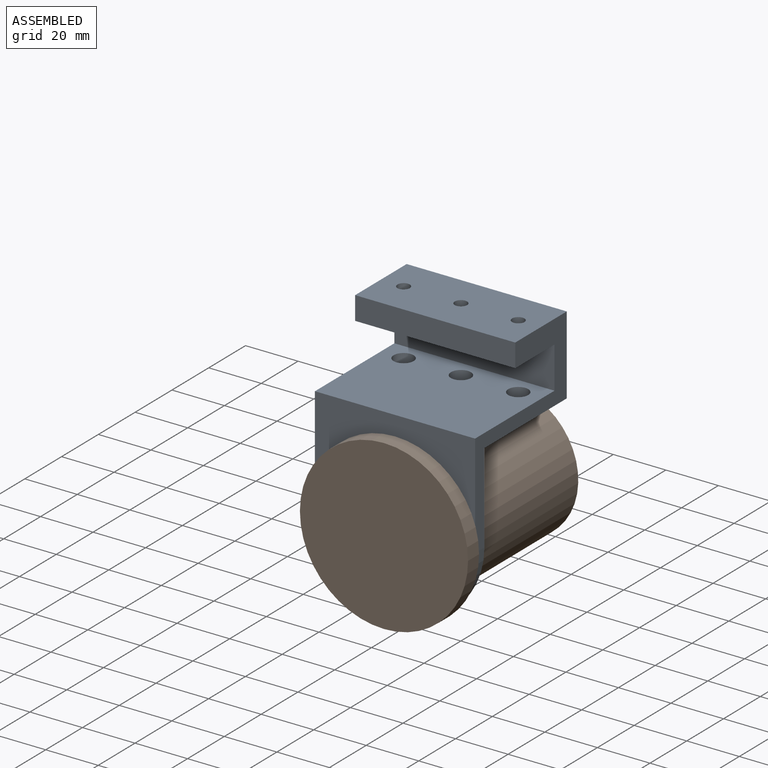
[diagram: assembled view]
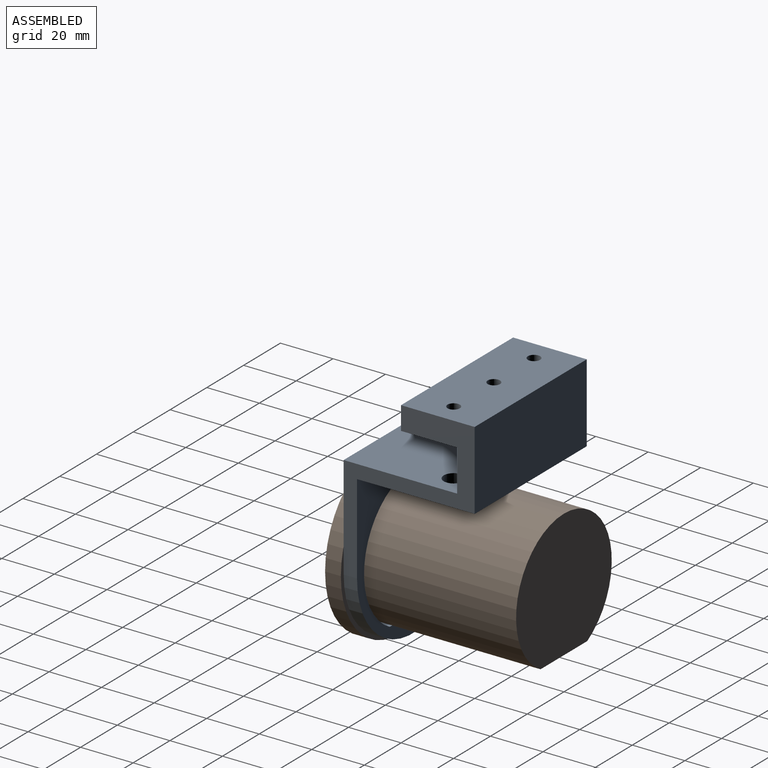
[diagram: assembled view, second angle]
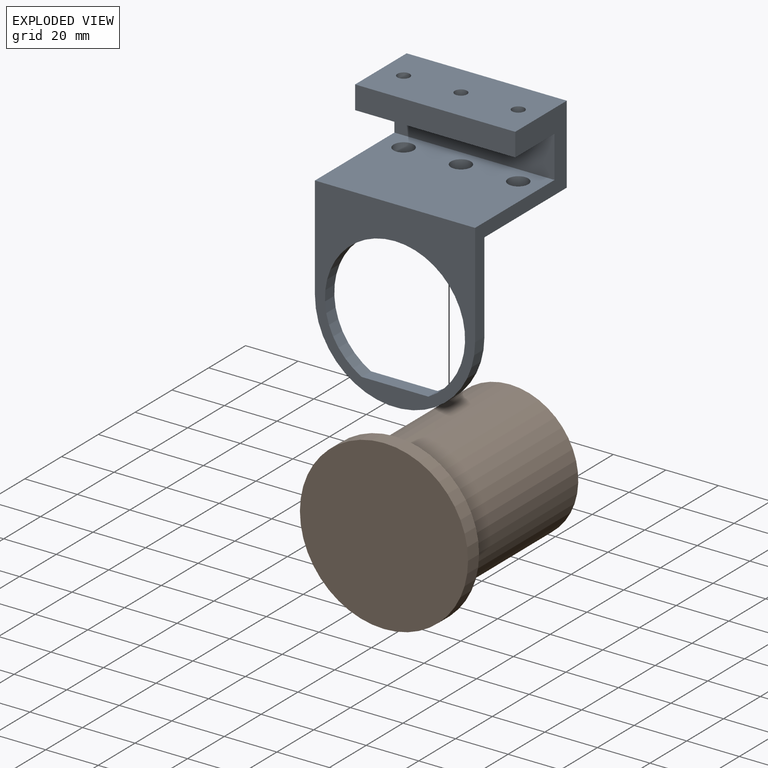
[diagram: exploded view]
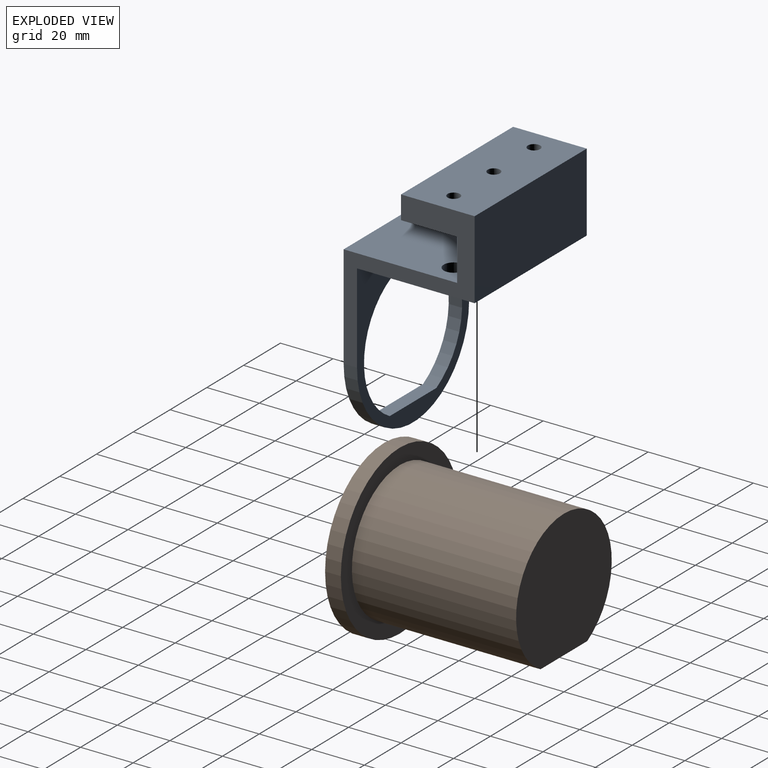
[diagram: exploded view, second angle]
ASSEMBLY  parts=2 mates=2
PART A: 20 faces, bbox 61x49.9x94.6 mm
  f0: plane 69.85x60.96mm, normal (0,-1,0), area 1679.9mm2, adj f8,f9,f10,f11,f12,f13
  f1: plane 64.65x60.96mm, normal (0,1,0), area 1363.1mm2, adj f2,f9,f10,f11,f12,f13
  f2: plane 60.96x44.78mm, normal (0,0,-1), area 2593.2mm2, adj f1,f3,f9,f10,f17,f18,f19
  f3: plane 60.96x29.91mm, normal (0,1,0), area 1823.6mm2, adj f2,f4,f9,f10
  f4: plane 60.96x28.04mm, normal (0,0,1), area 1657.1mm2, adj f3,f5,f9,f10,f14,f15,f16
  f5: plane 60.96x8.84mm, normal (0,-1,0), area 539mm2, adj f4,f6,f9,f10
  f6: plane 60.96x21.35mm, normal (0,0,-1), area 1249.7mm2, adj f5,f7,f9,f10,f14,f15,f16
  f7: plane 60.96x15.88mm, normal (0,-1,0), area 967.7mm2, adj f6,f8,f9,f10
  f8: plane 60.96x43.18mm, normal (0,0,1), area 2495.4mm2, adj f0,f7,f9,f10,f17,f18,f19
  f9: plane 64.09x49.86mm, normal (1,0,0), area 786.7mm2, adj f0,f1,f2,f3,f4,f5,f6,f7
  f10: plane 64.09x49.86mm, normal (-1,0,0), area 786.7mm2, adj f0,f1,f2,f3,f4,f5,f6,f7
  f11: plane 25.4x5.08mm, normal (0,0,1), area 129mm2, adj f0,f1,f12
  f12: cylinder r=26.67mm len=53.34mm, axis (0,-1,0), area 716.8mm2, adj f0,f1,f11
  f13: cylinder r=30.48mm len=60.96mm, axis (0,-1,0), area 486.4mm2, adj f0,f1,f9,f10
  f14: cylinder r=2.35mm len=8.84mm, axis (0,0,1), area 130.5mm2, adj f4,f6
  f15: cylinder r=2.35mm len=8.84mm, axis (0,0,1), area 130.5mm2, adj f4,f6
  f16: cylinder r=2.35mm len=8.84mm, axis (0,0,1), area 130.5mm2, adj f4,f6
  f17: cylinder r=3.81mm len=7.62mm, axis (0,0,-1), area 124.4mm2, adj f2,f8
  f18: cylinder r=3.81mm len=7.62mm, axis (0,0,-1), area 124.4mm2, adj f2,f8
  f19: cylinder r=3.81mm len=7.62mm, axis (0,0,-1), area 124.4mm2, adj f2,f8
PART B: 6 faces, bbox 64x68.5x64 mm
  f0: plane 62.5x25.4mm, normal (0,0,-1), area 1587.5mm2, adj f1,f2,f3
  f1: cylinder r=26mm len=62.5mm, axis (0,1,0), area 8551.6mm2, adj f0,f2,f3
  f2: plane 52x48.69mm, normal (0,1,0), area 2066.9mm2, adj f0,f1
  f3: plane 64x64mm, normal (0,1,0), area 1150.1mm2, adj f0,f1,f4
  f4: cylinder r=32mm len=64mm, axis (0,1,0), area 1206.4mm2, adj f3,f5
  f5: plane 64x64mm, normal (0,-1,0), area 3217mm2, adj f4
PLACE A t=(57.8,-24.07,30.73)mm
PLACE B t=(57.8,38.43,-8.64)mm
MATE planar B.f3 <-> A.f0  axis (0,1,0) through (57.8,-24.07,-9.82)mm
MATE slider A.f12 <-> B.f1  axis (0,1,0) through (57.8,-18.99,-8.64)mm
